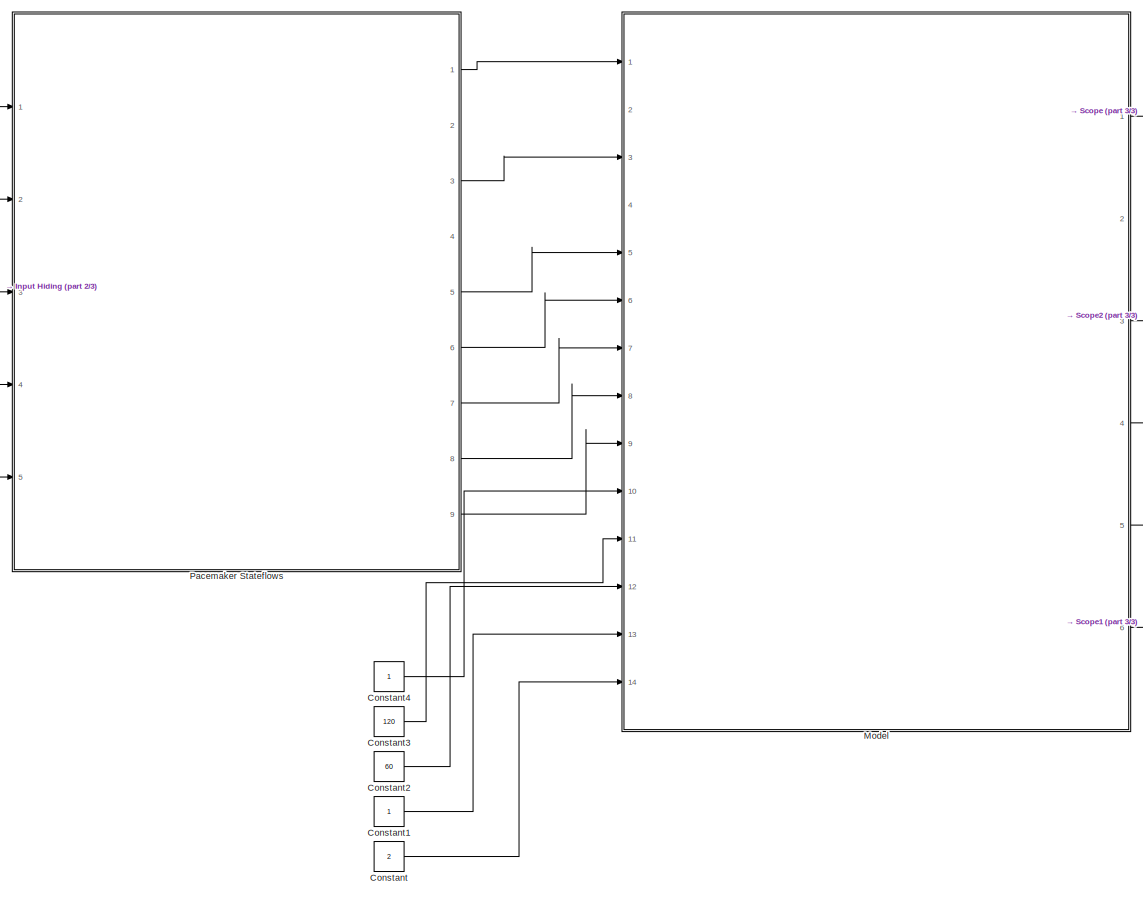
[diagram: root canvas - part 1/3, center side, full height]
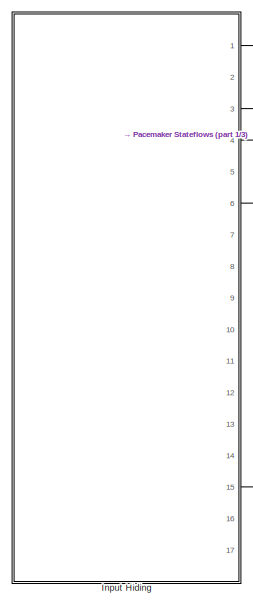
[diagram: root canvas - part 2/3, middle left region]
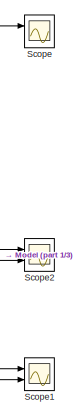
[diagram: root canvas - part 3/3, top right region]
MODEL slx_2962d3a331b8
KIND model
CONFIG AbsTol = auto
CONFIG EnableMultiTasking = on
CONFIG FixedStep = 1e-4
CONFIG MaxStep = auto
CONFIG MinStep = auto
CONFIG RelTol = 1e-3
CONFIG SampleTimeConstraint = Unconstrained
CONFIG SolverName = FixedStepAuto
CONFIG StartTime = 0.0
CONFIG StopTime = 10.0
BLOCK [Constant] Constant
  Value = 2
BLOCK [Constant] Constant1
BLOCK [Constant] Constant2
  Value = 60
BLOCK [Constant] Constant3
  Value = 120
BLOCK [Constant] Constant4
  OutDataTypeStr = boolean
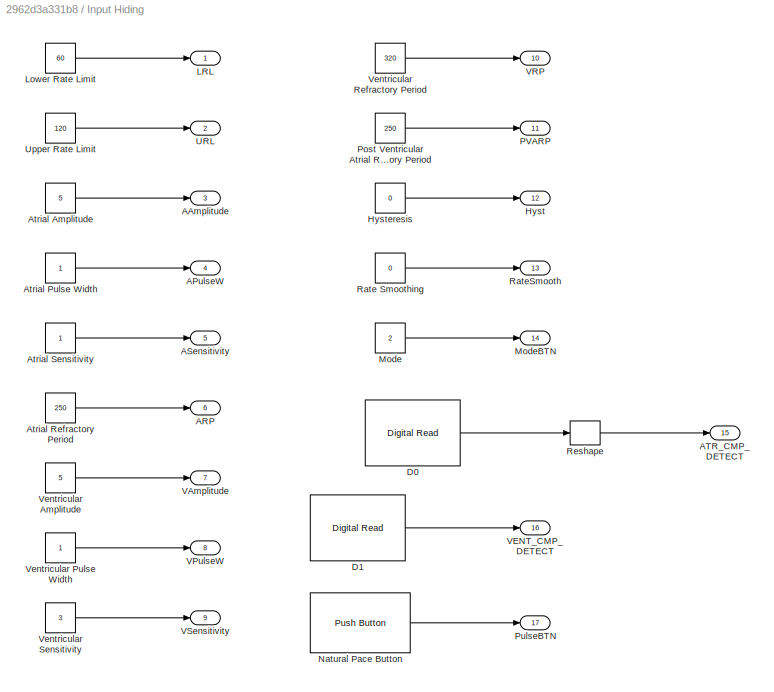
BLOCK [SubSystem] Input Hiding
  Ports = [0, 17]
  RequestExecContextInheritance = off
BLOCK [Outport] Input Hiding/AAmplitude
  OutDataTypeStr = double
  Port = 3
BLOCK [Outport] Input Hiding/APulseW
  OutDataTypeStr = double
  Port = 4
BLOCK [Outport] Input Hiding/ARP
  OutDataTypeStr = double
  Port = 6
BLOCK [Outport] Input Hiding/ASensitivity
  OutDataTypeStr = double
  Port = 5
BLOCK [Outport] Input Hiding/ATR_CMP_DETECT
  OutDataTypeStr = boolean
  Port = 15
BLOCK [Constant] Input Hiding/Atrial Amplitude
  OutDataTypeStr = double
  Value = 5
BLOCK [Constant] Input Hiding/Atrial Pulse Width
  OutDataTypeStr = double
BLOCK [Constant] Input Hiding/Atrial Refractory Period
  OutDataTypeStr = double
  Value = 250
BLOCK [Constant] Input Hiding/Atrial Sensitivity
  OutDataTypeStr = double
BLOCK [Reference] Input Hiding/D0  REF=frdmk64flib/Digital Read
  Ports = [0, 1]
  SourceBlock = frdmk64flib/Digital Read
  SourceProductBaseCode = EC_FRDM_K64F
  SourceType = freedomk64f.DigitalRead
BLOCK [Reference] Input Hiding/D1  REF=frdmk64flib/Digital Read
  Ports = [0, 1]
  SourceBlock = frdmk64flib/Digital Read
  SourceProductBaseCode = EC_FRDM_K64F
  SourceType = freedomk64f.DigitalRead
BLOCK [Outport] Input Hiding/Hyst
  OutDataTypeStr = double
  Port = 12
BLOCK [Constant] Input Hiding/Hysteresis
  OutDataTypeStr = double
  Value = 0
BLOCK [Outport] Input Hiding/LRL
  OutDataTypeStr = double
BLOCK [Constant] Input Hiding/Lower Rate Limit
  OutDataTypeStr = double
  Value = 60
BLOCK [Constant] Input Hiding/Mode
  OutDataTypeStr = double
  Value = 2
BLOCK [Outport] Input Hiding/ModeBTN
  OutDataTypeStr = double
  Port = 14
BLOCK [Reference] Input Hiding/Natural Pace Button  REF=frdmk64flib/Push Button
  Ports = [0, 1]
  SourceBlock = frdmk64flib/Push Button
  SourceProductBaseCode = EC_FRDM_K64F
  SourceType = freedomk64f.PushButton
BLOCK [Outport] Input Hiding/PVARP
  OutDataTypeStr = double
  Port = 11
BLOCK [Constant] Input Hiding/Post Ventricular Atrial Refractory Period
  OutDataTypeStr = double
  Value = 250
BLOCK [Outport] Input Hiding/PulseBTN
  OutDataTypeStr = boolean
  Port = 17
BLOCK [Constant] Input Hiding/Rate Smoothing
  OutDataTypeStr = double
  Value = 0
BLOCK [Outport] Input Hiding/RateSmooth
  OutDataTypeStr = double
  Port = 13
BLOCK [Reshape] Input Hiding/Reshape
  OutputDimensionality = Customize
  OutputDimensions = 1
  Ports = [1, 1]
BLOCK [Outport] Input Hiding/URL
  OutDataTypeStr = double
  Port = 2
BLOCK [Constant] Input Hiding/Upper Rate Limit
  OutDataTypeStr = double
  Value = 120
BLOCK [Outport] Input Hiding/VAmplitude
  OutDataTypeStr = double
  Port = 7
BLOCK [Outport] Input Hiding/VENT_CMP_DETECT
  OutDataTypeStr = boolean
  Port = 16
BLOCK [Outport] Input Hiding/VPulseW
  OutDataTypeStr = double
  Port = 8
BLOCK [Outport] Input Hiding/VRP
  OutDataTypeStr = double
  Port = 10
BLOCK [Outport] Input Hiding/VSensitivity
  OutDataTypeStr = double
  Port = 9
BLOCK [Constant] Input Hiding/Ventricular Amplitude
  OutDataTypeStr = double
  Value = 5
BLOCK [Constant] Input Hiding/Ventricular Pulse Width
  OutDataTypeStr = double
BLOCK [Constant] Input Hiding/Ventricular Refractory Period
  OutDataTypeStr = double
  Value = 320
BLOCK [Constant] Input Hiding/Ventricular Sensitivity
  OutDataTypeStr = double
  Value = 3
BLOCK [ModelReference] Model
  CopyOfModelProtected = on
  ModelNameDialog = Shield_Model.slxp
  ModelReferenceVersion = 1.25
  Ports = [14, 6]
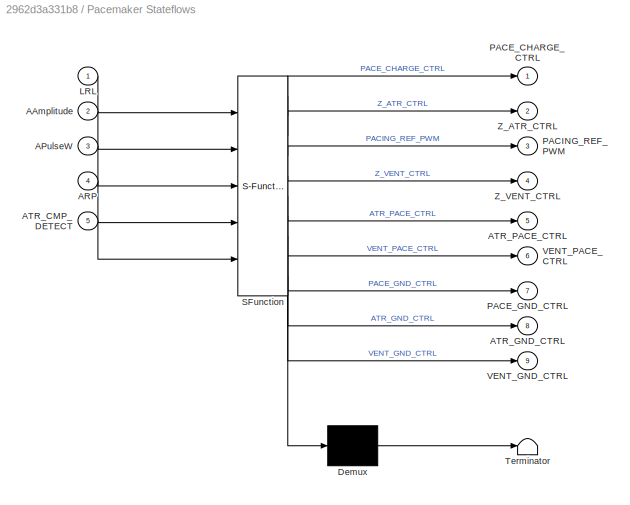
BLOCK [SubSystem] Pacemaker Stateflows
  ErrorFcn = Stateflow.Translate.translate
  PermitHierarchicalResolution = ExplicitOnly
  Ports = [5, 9]
  RequestExecContextInheritance = off
  SFBlockType = Chart
  TreatAsAtomicUnit = on
BLOCK [Demux] Pacemaker Stateflows/ Demux 
  Outputs = 1
  Ports = [1, 1]
BLOCK [S-Function] Pacemaker Stateflows/ SFunction 
  EnableBusSupport = on
  FunctionName = sf_sfun
  PortCounts = [5 10]
  Ports = [5, 10]
  SFcnIsStateOwnerBlock = off
  SFunctionDeploymentMode = off
  Tag = Stateflow S-Function 3
BLOCK [Terminator] Pacemaker Stateflows/ Terminator 
BLOCK [Inport] Pacemaker Stateflows/AAmplitude
  Port = 2
BLOCK [Inport] Pacemaker Stateflows/APulseW
  Port = 3
BLOCK [Inport] Pacemaker Stateflows/ARP
  Port = 4
BLOCK [Inport] Pacemaker Stateflows/ATR_CMP_DETECT
  Port = 5
BLOCK [Outport] Pacemaker Stateflows/ATR_GND_CTRL
  Port = 8
BLOCK [Outport] Pacemaker Stateflows/ATR_PACE_CTRL
  Port = 5
BLOCK [Inport] Pacemaker Stateflows/LRL
BLOCK [Outport] Pacemaker Stateflows/PACE_CHARGE_CTRL
BLOCK [Outport] Pacemaker Stateflows/PACE_GND_CTRL
  Port = 7
BLOCK [Outport] Pacemaker Stateflows/PACING_REF_PWM
  Port = 3
BLOCK [Outport] Pacemaker Stateflows/VENT_GND_CTRL
  Port = 9
BLOCK [Outport] Pacemaker Stateflows/VENT_PACE_CTRL
  Port = 6
BLOCK [Outport] Pacemaker Stateflows/Z_ATR_CTRL
  Port = 2
BLOCK [Outport] Pacemaker Stateflows/Z_VENT_CTRL
  Port = 4
BLOCK [Scope] Scope
  Floating = off
  NumInputPorts = 2
  Ports = [2]
  ScopeSpecificationString = Simulink.scopes.TimeScopeBlockCfg('CurrentConfiguration', extmgr.ConfigurationSet(extmgr.Configuration('Core','General UI',true),extmgr.Configuration('Core','Source UI',true),extmgr.Configuration('Sources','WiredSimulink',true,'DataLoggingVariableName','ScopeData1'),extmgr.Configuration('Visuals','Time Domain',true,'SerializedDisplays',{struct('MinYLimReal','-0.125','MaxYLimReal','1.125','YLabelRe...<+1410ch>
BLOCK [Scope] Scope1
  Floating = off
  NumInputPorts = 2
  Ports = [2]
  ScopeSpecificationString = Simulink.scopes.TimeScopeBlockCfg('CurrentConfiguration', extmgr.ConfigurationSet(extmgr.Configuration('Core','General UI',true),extmgr.Configuration('Core','Source UI',true),extmgr.Configuration('Sources','WiredSimulink',true,'DataLoggingVariableName','ScopeData2'),extmgr.Configuration('Visuals','Time Domain',true,'SerializedDisplays',{struct('MinYLimReal','-0.54898','MaxYLimReal','4.65936','YLab...<+1905ch>
BLOCK [Scope] Scope2
  Floating = off
  NumInputPorts = 2
  Ports = [2]
  ScopeSpecificationString = Simulink.scopes.TimeScopeBlockCfg('CurrentConfiguration', extmgr.ConfigurationSet(extmgr.Configuration('Core','General UI',true),extmgr.Configuration('Core','Source UI',true),extmgr.Configuration('Sources','WiredSimulink',true),extmgr.Configuration('Visuals','Time Domain',true,'SerializedDisplays',{struct('MinYLimReal','-1.67604','MaxYLimReal','5.16902','YLabelReal','','MinYLimMag','0.00000','MaxY...<+1410ch>
LINE Constant1:1 -> Model:13
LINE Constant2:1 -> Model:12
LINE Constant3:1 -> Model:11
LINE Constant4:1 -> Model:10
LINE Constant:1 -> Model:14
LINE Input Hiding/Atrial Amplitude:1 -> Input Hiding/AAmplitude:1
LINE Input Hiding/Atrial Pulse Width:1 -> Input Hiding/APulseW:1
LINE Input Hiding/Atrial Refractory Period:1 -> Input Hiding/ARP:1
LINE Input Hiding/Atrial Sensitivity:1 -> Input Hiding/ASensitivity:1
LINE Input Hiding/D0:1 -> Input Hiding/Reshape:1
LINE Input Hiding/D1:1 -> Input Hiding/VENT_CMP_DETECT:1
LINE Input Hiding/Hysteresis:1 -> Input Hiding/Hyst:1
LINE Input Hiding/Lower Rate Limit:1 -> Input Hiding/LRL:1
LINE Input Hiding/Mode:1 -> Input Hiding/ModeBTN:1
LINE Input Hiding/Natural Pace Button:1 -> Input Hiding/PulseBTN:1
LINE Input Hiding/Post Ventricular Atrial Refractory Period:1 -> Input Hiding/PVARP:1
LINE Input Hiding/Rate Smoothing:1 -> Input Hiding/RateSmooth:1
LINE Input Hiding/Reshape:1 -> Input Hiding/ATR_CMP_DETECT:1
LINE Input Hiding/Upper Rate Limit:1 -> Input Hiding/URL:1
LINE Input Hiding/Ventricular Amplitude:1 -> Input Hiding/VAmplitude:1
LINE Input Hiding/Ventricular Pulse Width:1 -> Input Hiding/VPulseW:1
LINE Input Hiding/Ventricular Refractory Period:1 -> Input Hiding/VRP:1
LINE Input Hiding/Ventricular Sensitivity:1 -> Input Hiding/VSensitivity:1
LINE Input Hiding:1 -> Pacemaker Stateflows:1
LINE Input Hiding:15 -> Pacemaker Stateflows:5
LINE Input Hiding:3 -> Pacemaker Stateflows:2
LINE Input Hiding:4 -> Pacemaker Stateflows:3
LINE Input Hiding:6 -> Pacemaker Stateflows:4
LINE Model:1 -> Scope:1
LINE Model:3 -> Scope2:2
LINE Model:4 -> Scope1:2
LINE Model:5 -> Scope2:1
LINE Model:6 -> Scope1:1
LINE Pacemaker Stateflows:1 -> Model:1
LINE Pacemaker Stateflows:3 -> Model:3
LINE Pacemaker Stateflows:5 -> Model:5
LINE Pacemaker Stateflows:6 -> Model:6
LINE Pacemaker Stateflows:7 -> Model:7
LINE Pacemaker Stateflows:8 -> Model:8
LINE Pacemaker Stateflows:9 -> Model:9
CHART Pacemaker Stateflows states=4 transitions=6
  STATE_LABEL 'ENTRY\nentry:\nVENT_PACE_CTRL = 0; VENT_GND_CTRL = 0; PACE_GND_CTRL = 1;\nZ_VENT_CTRL = 0; Z_ATR_CTRL = 0; PACING_REF_PWM = AAmplitude*20;'
  STATE_LABEL 'PACE_ATR\n%Discharge\nentry:\nPACE_CHARGE_CTRL = 0;\nATR_GND_CTRL = 0;\nATR_PACE_CTRL = 1;'
  STATE_LABEL 'C22_CHARGE\nentry:\nATR_PACE_CTRL = 0;\nATR_GND_CTRL = 1;\nPACE_CHARGE_CTRL = 1;'
  STATE_LABEL 'INTERMEDIATE\n%In between state\nentry:\nPACE_CHARGE_CTRL = 1;\nATR_GND_CTRL = 1;\nATR_PACE_CTRL = 0;'
CHART  states=0 transitions=0
